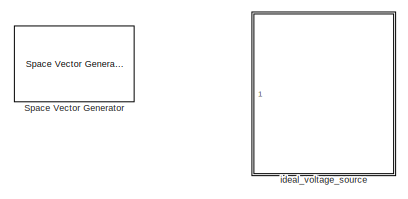
[diagram: root canvas - part 1/4, top left region]
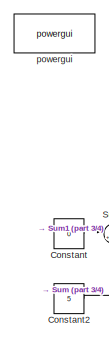
[diagram: root canvas - part 2/4, middle left region]
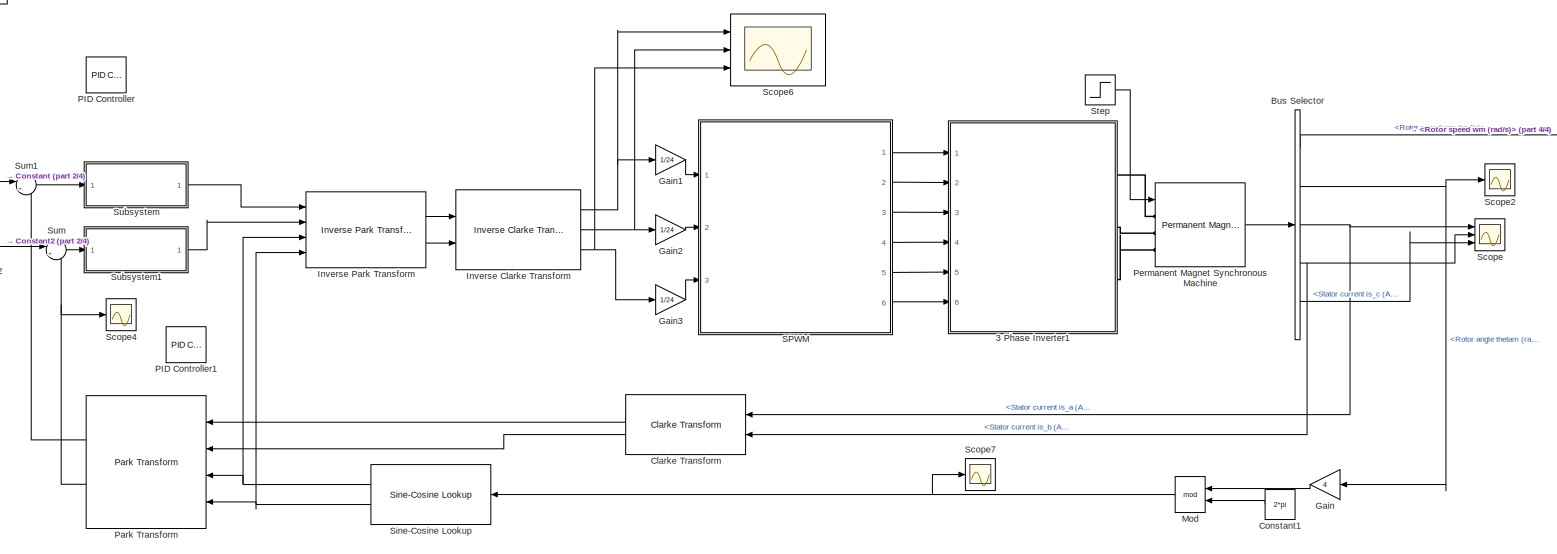
[diagram: root canvas - part 3/4, full width, bottom band]
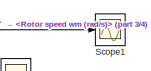
[diagram: root canvas - part 4/4, middle right region]
MODEL slx_a752b87a7616
KIND model
CONFIG AbsTol = auto
CONFIG EnableMultiTasking = off
CONFIG FixedStep = 1e-4
CONFIG MaxStep = auto
CONFIG MinStep = auto
CONFIG RelTol = 1e-3
CONFIG SampleTimeConstraint = Unconstrained
CONFIG SolverName = VariableStepAuto
CONFIG StartTime = 0.0
CONFIG StopTime = 2
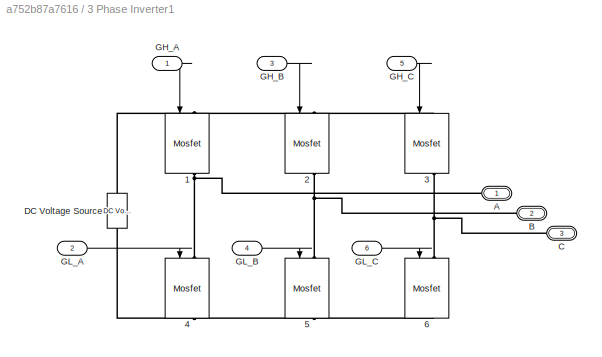
BLOCK [SubSystem] 3 Phase Inverter1
  Ports = [6, 0, 0, 0, 0, 0, 3]
  RequestExecContextInheritance = off
BLOCK [Reference] 3 Phase Inverter1/1  REF=powerlib/Power
Electronics/Mosfet
  NameLocation = left
  Ports = [1, 1, 0, 0, 0, 1, 1]
  SourceBlock = powerlib/Power\nElectronics/Mosfet
  SourceProductBaseCode = PS
  SourceType = Mosfet
BLOCK [Reference] 3 Phase Inverter1/2  REF=powerlib/Power
Electronics/Mosfet
  NameLocation = left
  Ports = [1, 1, 0, 0, 0, 1, 1]
  SourceBlock = powerlib/Power\nElectronics/Mosfet
  SourceProductBaseCode = PS
  SourceType = Mosfet
BLOCK [Reference] 3 Phase Inverter1/3  REF=powerlib/Power
Electronics/Mosfet
  NameLocation = left
  Ports = [1, 1, 0, 0, 0, 1, 1]
  SourceBlock = powerlib/Power\nElectronics/Mosfet
  SourceProductBaseCode = PS
  SourceType = Mosfet
BLOCK [Reference] 3 Phase Inverter1/4  REF=powerlib/Power
Electronics/Mosfet
  NameLocation = left
  Ports = [1, 1, 0, 0, 0, 1, 1]
  SourceBlock = powerlib/Power\nElectronics/Mosfet
  SourceProductBaseCode = PS
  SourceType = Mosfet
BLOCK [Reference] 3 Phase Inverter1/5  REF=powerlib/Power
Electronics/Mosfet
  NameLocation = left
  Ports = [1, 1, 0, 0, 0, 1, 1]
  SourceBlock = powerlib/Power\nElectronics/Mosfet
  SourceProductBaseCode = PS
  SourceType = Mosfet
BLOCK [Reference] 3 Phase Inverter1/6  REF=powerlib/Power
Electronics/Mosfet
  NameLocation = left
  Ports = [1, 1, 0, 0, 0, 1, 1]
  SourceBlock = powerlib/Power\nElectronics/Mosfet
  SourceProductBaseCode = PS
  SourceType = Mosfet
BLOCK [PMIOPort] 3 Phase Inverter1/A
  Side = Right
BLOCK [PMIOPort] 3 Phase Inverter1/B
  Port = 2
  Side = Right
BLOCK [PMIOPort] 3 Phase Inverter1/C
  Port = 3
  Side = Right
BLOCK [Reference] 3 Phase Inverter1/DC Voltage Source  REF=powerlib/Electrical
Sources/DC Voltage Source
  NameLocation = right
  Ports = [0, 0, 0, 0, 0, 1, 1]
  SourceBlock = powerlib/Electrical\nSources/DC Voltage Source
  SourceProductBaseCode = PS
  SourceType = DC Voltage Source
BLOCK [Inport] 3 Phase Inverter1/GH_A
BLOCK [Inport] 3 Phase Inverter1/GH_B
  Port = 3
BLOCK [Inport] 3 Phase Inverter1/GH_C
  Port = 5
BLOCK [Inport] 3 Phase Inverter1/GL_A
  Port = 2
BLOCK [Inport] 3 Phase Inverter1/GL_B
  Port = 4
BLOCK [Inport] 3 Phase Inverter1/GL_C
  Port = 6
BLOCK [BusSelector] Bus Selector
  OutputSignals = Rotor speed wm (rad/s),Rotor angle thetam (rad),Stator current is_a (A),Stator current is_b (A),Stator current is_c (A)
  Ports = [1, 5]
BLOCK [Reference] Clarke Transform  REF=mcbcontrolslib/Clarke Transform
  NameLocation = top
  Ports = [2, 2]
  SourceBlock = mcbcontrolslib/Clarke Transform
  SourceProductBaseCode = MT
  SourceType = Clarke Transform
BLOCK [Constant] Constant
  Value = 0
BLOCK [Constant] Constant1
  NameLocation = top
  Value = 2*pi
BLOCK [Constant] Constant2
  Value = 5
BLOCK [Gain] Gain
  Gain = 4
  NameLocation = top
BLOCK [Gain] Gain1
  Gain = 1/24
BLOCK [Gain] Gain2
  Gain = 1/24
BLOCK [Gain] Gain3
  Gain = 1/24
BLOCK [Reference] Inverse Clarke Transform  REF=mcbcontrolslib/Inverse Clarke Transform
  Ports = [2, 3]
  SourceBlock = mcbcontrolslib/Inverse Clarke Transform
  SourceProductBaseCode = MT
  SourceType = Inverse Clarke Transform
BLOCK [Reference] Inverse Park Transform  REF=mcbcontrolslib/Inverse Park Transform
  Ports = [4, 2]
  SourceBlock = mcbcontrolslib/Inverse Park Transform
  SourceProductBaseCode = MT
  SourceType = Inverse Park Transform
BLOCK [Math] Mod
  NameLocation = top
  Operator = mod
  Ports = [2, 1]
BLOCK [Reference] PID Controller  REF=pid_lib/PID Controller
  Ports = [1, 1]
  SourceBlock = pid_lib/PID Controller
  SourceProductBaseCode = SL
  SourceType = PID 1dof
BLOCK [Reference] PID Controller1  REF=pid_lib/PID Controller
  Ports = [1, 1]
  SourceBlock = pid_lib/PID Controller
  SourceProductBaseCode = SL
  SourceType = PID 1dof
BLOCK [Reference] Park Transform  REF=mcbcontrolslib/Park Transform
  NameLocation = top
  Ports = [4, 2]
  SourceBlock = mcbcontrolslib/Park Transform
  SourceProductBaseCode = MT
  SourceType = Park Transform
BLOCK [Reference] Permanent Magnet Synchronous Machine  REF=powerlib/Machines/Permanent Magnet
Synchronous Machine
  Ports = [1, 1, 0, 0, 0, 3]
  SourceBlock = powerlib/Machines/Permanent Magnet\nSynchronous Machine
  SourceProductBaseCode = PS
  SourceType = Permanent Magnet Synchronous Machine
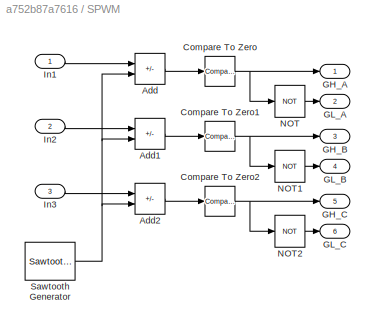
BLOCK [SubSystem] SPWM
  Ports = [3, 6]
  RequestExecContextInheritance = off
BLOCK [Sum] SPWM/Add
  IconShape = rectangular
  Inputs = +-
  Ports = [2, 1]
BLOCK [Sum] SPWM/Add1
  IconShape = rectangular
  Inputs = +-
  Ports = [2, 1]
BLOCK [Sum] SPWM/Add2
  IconShape = rectangular
  Inputs = +-
  Ports = [2, 1]
BLOCK [Reference] SPWM/Compare To Zero  REF=simulink/Logic and Bit
Operations/Compare
To Zero
  Ports = [1, 1]
  SourceBlock = simulink/Logic and Bit\nOperations/Compare\nTo Zero
  SourceProductBaseCode = SL
  SourceType = Compare To Zero
BLOCK [Reference] SPWM/Compare To Zero1  REF=simulink/Logic and Bit
Operations/Compare
To Zero
  Ports = [1, 1]
  SourceBlock = simulink/Logic and Bit\nOperations/Compare\nTo Zero
  SourceProductBaseCode = SL
  SourceType = Compare To Zero
BLOCK [Reference] SPWM/Compare To Zero2  REF=simulink/Logic and Bit
Operations/Compare
To Zero
  Ports = [1, 1]
  SourceBlock = simulink/Logic and Bit\nOperations/Compare\nTo Zero
  SourceProductBaseCode = SL
  SourceType = Compare To Zero
BLOCK [Outport] SPWM/GH_A
BLOCK [Outport] SPWM/GH_B
  Port = 3
BLOCK [Outport] SPWM/GH_C
  Port = 5
BLOCK [Outport] SPWM/GL_A
  Port = 2
BLOCK [Outport] SPWM/GL_B
  Port = 4
BLOCK [Outport] SPWM/GL_C
  Port = 6
BLOCK [Inport] SPWM/In1
BLOCK [Inport] SPWM/In2
  Port = 2
BLOCK [Inport] SPWM/In3
  Port = 3
BLOCK [Logic] SPWM/NOT
  AllPortsSameDT = off
  IconShape = distinctive
  Operator = NOT
  OutDataTypeStr = boolean
  Ports = [1, 1]
BLOCK [Logic] SPWM/NOT1
  AllPortsSameDT = off
  IconShape = distinctive
  Operator = NOT
  OutDataTypeStr = boolean
  Ports = [1, 1]
BLOCK [Logic] SPWM/NOT2
  AllPortsSameDT = off
  IconShape = distinctive
  Operator = NOT
  OutDataTypeStr = boolean
  Ports = [1, 1]
BLOCK [Reference] SPWM/Sawtooth Generator  REF=powerlib_meascontrol/Pulse & Signal
Generators/Sawtooth
Generator
  Ports = [0, 1]
  SourceBlock = powerlib_meascontrol/Pulse & Signal\nGenerators/Sawtooth\nGenerator
  SourceProductBaseCode = PS
  SourceType = Sawtooth Generator
BLOCK [Scope] Scope
  Floating = off
  NumInputPorts = 3
  Ports = [3]
  ScopeSpecificationString = Simulink.scopes.TimeScopeBlockCfg('CurrentConfiguration', extmgr.ConfigurationSet(extmgr.Configuration('Core','General UI',true),extmgr.Configuration('Core','Source UI',true),extmgr.Configuration('Sources','WiredSimulink',true),extmgr.Configuration('Visuals','Time Domain',true,'SerializedDisplays',{struct('MinYLimReal','-7.91488','MaxYLimReal','6.3525','YLabelReal','','MinYLimMag','0.00000','MaxYL...<+1472ch>
BLOCK [Scope] Scope1
  Floating = off
  NumInputPorts = 1
  Ports = [1]
  ScopeSpecificationString = Simulink.scopes.TimeScopeBlockCfg('CurrentConfiguration', extmgr.ConfigurationSet(extmgr.Configuration('Core','General UI',true),extmgr.Configuration('Core','Source UI',true),extmgr.Configuration('Sources','WiredSimulink',true,'DataLoggingVariableName','ScopeData1'),extmgr.Configuration('Visuals','Time Domain',true,'SerializedDisplays',{struct('MinYLimReal','-6.70532','MaxYLimReal','5.17815','YLab...<+1576ch>
BLOCK [Scope] Scope2
  Floating = off
  NumInputPorts = 1
  Ports = [1]
  ScopeSpecificationString = Simulink.scopes.TimeScopeBlockCfg('CurrentConfiguration', extmgr.ConfigurationSet(extmgr.Configuration('Core','General UI',true),extmgr.Configuration('Core','Source UI',true),extmgr.Configuration('Sources','WiredSimulink',true,'DataLoggingVariableName','ScopeData2'),extmgr.Configuration('Visuals','Time Domain',true,'SerializedDisplays',{struct('MinYLimReal','-0.0003','MaxYLimReal','0.00268','YLabe...<+1438ch>
BLOCK [Scope] Scope4
  Floating = off
  NumInputPorts = 1
  Ports = [1]
  ScopeSpecificationString = Simulink.scopes.TimeScopeBlockCfg('CurrentConfiguration', extmgr.ConfigurationSet(extmgr.Configuration('Core','General UI',true),extmgr.Configuration('Core','Source UI',true),extmgr.Configuration('Sources','WiredSimulink',true,'DataLoggingVariableName','ScopeData1'),extmgr.Configuration('Visuals','Time Domain',true,'SerializedDisplays',{struct('MinYLimReal','-0.68415','MaxYLimReal','6.15733','YLab...<+1450ch>
BLOCK [Scope] Scope6
  Floating = off
  NumInputPorts = 3
  Ports = [3]
  ScopeSpecificationString = Simulink.scopes.TimeScopeBlockCfg('CurrentConfiguration', extmgr.ConfigurationSet(extmgr.Configuration('Core','General UI',true),extmgr.Configuration('Core','Source UI',true),extmgr.Configuration('Sources','WiredSimulink',true,'DataLoggingVariableName','ScopeData2'),extmgr.Configuration('Visuals','Time Domain',true,'SerializedDisplays',{struct('MinYLimReal','-17.27008','MaxYLimReal','12.92554','YL...<+1468ch>
BLOCK [Scope] Scope7
  Floating = off
  NumInputPorts = 1
  Ports = [1]
  ScopeSpecificationString = Simulink.scopes.TimeScopeBlockCfg('CurrentConfiguration', extmgr.ConfigurationSet(extmgr.Configuration('Core','General UI',true),extmgr.Configuration('Core','Source UI',true),extmgr.Configuration('Sources','WiredSimulink',true,'DataLoggingVariableName','ScopeData1'),extmgr.Configuration('Visuals','Time Domain',true,'SerializedDisplays',{struct('MinYLimReal','0.08369','MaxYLimReal','2.70168','YLabe...<+1379ch>
BLOCK [Reference] Sine-Cosine Lookup  REF=mcbcontrolslib/Sine-Cosine Lookup
  NameLocation = top
  Ports = [1, 2]
  SourceBlock = mcbcontrolslib/Sine-Cosine Lookup
  SourceProductBaseCode = MT
  SourceType = Sine-Cosine Lookup
BLOCK [Reference] Space Vector Generator  REF=mcbcontrolslib/Space Vector Generator
  Ports = [2, 3]
  SourceBlock = mcbcontrolslib/Space Vector Generator
  SourceProductBaseCode = MT
  SourceType = Space Vector Generator
BLOCK [Step] Step
  After = 0
  SampleTime = 0
  Time = 0
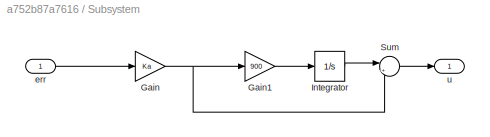
BLOCK [SubSystem] Subsystem
  Ports = [1, 1]
  RequestExecContextInheritance = off
BLOCK [Gain] Subsystem/Gain
  Gain = Ka
BLOCK [Gain] Subsystem/Gain1
  Gain = 900
BLOCK [Integrator] Subsystem/Integrator
  Ports = [1, 1]
BLOCK [Sum] Subsystem/Sum
  Inputs = |++
  Ports = [2, 1]
BLOCK [Inport] Subsystem/err
BLOCK [Outport] Subsystem/u
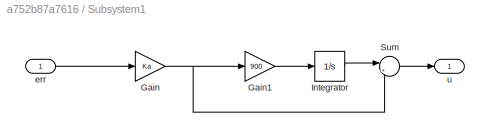
BLOCK [SubSystem] Subsystem1
  Ports = [1, 1]
  RequestExecContextInheritance = off
BLOCK [Gain] Subsystem1/Gain
  Gain = Ka
BLOCK [Gain] Subsystem1/Gain1
  Gain = 900
BLOCK [Integrator] Subsystem1/Integrator
  Ports = [1, 1]
BLOCK [Sum] Subsystem1/Sum
  Inputs = |++
  Ports = [2, 1]
BLOCK [Inport] Subsystem1/err
BLOCK [Outport] Subsystem1/u
BLOCK [Sum] Sum
  Inputs = |+-
  Ports = [2, 1]
BLOCK [Sum] Sum1
  Inputs = |+-
  Ports = [2, 1]
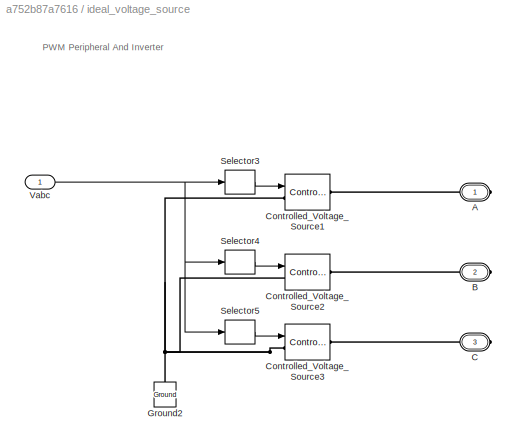
BLOCK [SubSystem] ideal_voltage_source
  Ports = [1, 0, 0, 0, 0, 0, 3]
  RequestExecContextInheritance = off
  VariantControl = variantPwm == enumPwm.behavior
BLOCK [PMIOPort] ideal_voltage_source/A
  Side = Right
  Tag = PMCPort
BLOCK [PMIOPort] ideal_voltage_source/B
  Port = 2
  Side = Right
  Tag = PMCPort
BLOCK [PMIOPort] ideal_voltage_source/C
  Port = 3
  Side = Right
  Tag = PMCPort
BLOCK [Reference] ideal_voltage_source/Controlled_Voltage_Source1  REF=powerlib/Electrical
Sources/Controlled Voltage Source
  Ports = [1, 0, 0, 0, 0, 1, 1]
  SourceBlock = powerlib/Electrical\nSources/Controlled Voltage Source
  SourceProductBaseCode = PS
  SourceType = Controlled Voltage Source
BLOCK [Reference] ideal_voltage_source/Controlled_Voltage_Source2  REF=powerlib/Electrical
Sources/Controlled Voltage Source
  Ports = [1, 0, 0, 0, 0, 1, 1]
  SourceBlock = powerlib/Electrical\nSources/Controlled Voltage Source
  SourceProductBaseCode = PS
  SourceType = Controlled Voltage Source
BLOCK [Reference] ideal_voltage_source/Controlled_Voltage_Source3  REF=powerlib/Electrical
Sources/Controlled Voltage Source
  Ports = [1, 0, 0, 0, 0, 1, 1]
  SourceBlock = powerlib/Electrical\nSources/Controlled Voltage Source
  SourceProductBaseCode = PS
  SourceType = Controlled Voltage Source
BLOCK [Reference] ideal_voltage_source/Ground2  REF=powerlib/Elements/Ground
  NameLocation = right
  Ports = [0, 0, 0, 0, 0, 1]
  SourceBlock = powerlib/Elements/Ground
  SourceProductBaseCode = PS
  SourceType = Ground
BLOCK [Selector] ideal_voltage_source/Selector3
  IndexOptions = Index vector (dialog)
  Indices = [1]
  InputPortWidth = 3
  OutputSizes = 1
  Ports = [1, 1]
BLOCK [Selector] ideal_voltage_source/Selector4
  IndexOptions = Index vector (dialog)
  Indices = 2
  InputPortWidth = 3
  OutputSizes = 1
  Ports = [1, 1]
BLOCK [Selector] ideal_voltage_source/Selector5
  IndexOptions = Index vector (dialog)
  Indices = 3
  InputPortWidth = 3
  OutputSizes = 1
  Ports = [1, 1]
BLOCK [Inport] ideal_voltage_source/Vabc
BLOCK [Reference] powergui  REF=powerlib/powergui
  Ports = []
  Priority = 1
  SourceBlock = powerlib/powergui
  SourceProductBaseCode = PS
  SourceType = PSB option menu block
ANNOTATION ideal_voltage_source: PWM Peripheral And Inverter
LINE 3 Phase Inverter1/GH_A:1 -> 3 Phase Inverter1/1:1
LINE 3 Phase Inverter1/GH_B:1 -> 3 Phase Inverter1/2:1
LINE 3 Phase Inverter1/GH_C:1 -> 3 Phase Inverter1/3:1
LINE 3 Phase Inverter1/GL_A:1 -> 3 Phase Inverter1/4:1
LINE 3 Phase Inverter1/GL_B:1 -> 3 Phase Inverter1/5:1
LINE 3 Phase Inverter1/GL_C:1 -> 3 Phase Inverter1/6:1
LINE Bus Selector:1 -> Scope1:1
NET Bus Selector:2 -> Gain:1, Scope2:1
NET Bus Selector:3 -> Clarke Transform:1, Scope:1
NET Bus Selector:4 -> Clarke Transform:2, Scope:2
LINE Bus Selector:5 -> Scope:3
LINE Clarke Transform:1 -> Park Transform:1
LINE Clarke Transform:2 -> Park Transform:2
LINE Constant1:1 -> Mod:2
LINE Constant2:1 -> Sum:1
LINE Constant:1 -> Sum1:1
LINE Gain1:1 -> SPWM:1
LINE Gain2:1 -> SPWM:2
LINE Gain3:1 -> SPWM:3
LINE Gain:1 -> Mod:1
NET Inverse Clarke Transform:1 -> Gain1:1, Scope6:1
NET Inverse Clarke Transform:2 -> Gain2:1, Scope6:2
NET Inverse Clarke Transform:3 -> Gain3:1, Scope6:3
LINE Inverse Park Transform:1 -> Inverse Clarke Transform:1
LINE Inverse Park Transform:2 -> Inverse Clarke Transform:2
NET Mod:1 -> Scope7:1, Sine-Cosine Lookup:1
LINE Park Transform:1 -> Sum1:2
NET Park Transform:2 -> Scope4:1, Sum:2
LINE Permanent Magnet Synchronous Machine:1 -> Bus Selector:1
LINE SPWM/Add1:1 -> SPWM/Compare To Zero1:1
LINE SPWM/Add2:1 -> SPWM/Compare To Zero2:1
LINE SPWM/Add:1 -> SPWM/Compare To Zero:1
NET SPWM/Compare To Zero1:1 -> SPWM/GH_B:1, SPWM/NOT1:1
NET SPWM/Compare To Zero2:1 -> SPWM/GH_C:1, SPWM/NOT2:1
NET SPWM/Compare To Zero:1 -> SPWM/GH_A:1, SPWM/NOT:1
LINE SPWM/In1:1 -> SPWM/Add:1
LINE SPWM/In2:1 -> SPWM/Add1:1
LINE SPWM/In3:1 -> SPWM/Add2:1
LINE SPWM/NOT1:1 -> SPWM/GL_B:1
LINE SPWM/NOT2:1 -> SPWM/GL_C:1
LINE SPWM/NOT:1 -> SPWM/GL_A:1
NET SPWM/Sawtooth Generator:1 -> SPWM/Add1:2, SPWM/Add2:2, SPWM/Add:2
LINE SPWM:1 -> 3 Phase Inverter1:1
LINE SPWM:2 -> 3 Phase Inverter1:2
LINE SPWM:3 -> 3 Phase Inverter1:3
LINE SPWM:4 -> 3 Phase Inverter1:4
LINE SPWM:5 -> 3 Phase Inverter1:5
LINE SPWM:6 -> 3 Phase Inverter1:6
NET Sine-Cosine Lookup:1 -> Inverse Park Transform:3, Park Transform:3
NET Sine-Cosine Lookup:2 -> Inverse Park Transform:4, Park Transform:4
LINE Step:1 -> Permanent Magnet Synchronous Machine:1
LINE Subsystem/Gain1:1 -> Subsystem/Integrator:1
NET Subsystem/Gain:1 -> Subsystem/Gain1:1, Subsystem/Sum:2
LINE Subsystem/Integrator:1 -> Subsystem/Sum:1
LINE Subsystem/Sum:1 -> Subsystem/u:1
LINE Subsystem/err:1 -> Subsystem/Gain:1
LINE Subsystem1/Gain1:1 -> Subsystem1/Integrator:1
NET Subsystem1/Gain:1 -> Subsystem1/Gain1:1, Subsystem1/Sum:2
LINE Subsystem1/Integrator:1 -> Subsystem1/Sum:1
LINE Subsystem1/Sum:1 -> Subsystem1/u:1
LINE Subsystem1/err:1 -> Subsystem1/Gain:1
LINE Subsystem1:1 -> Inverse Park Transform:2
LINE Subsystem:1 -> Inverse Park Transform:1
LINE Sum1:1 -> Subsystem:1
LINE Sum:1 -> Subsystem1:1
LINE ideal_voltage_source/Selector3:1 -> ideal_voltage_source/Controlled_Voltage_Source1:1
LINE ideal_voltage_source/Selector4:1 -> ideal_voltage_source/Controlled_Voltage_Source2:1
LINE ideal_voltage_source/Selector5:1 -> ideal_voltage_source/Controlled_Voltage_Source3:1
NET ideal_voltage_source/Vabc:1 -> ideal_voltage_source/Selector3:1, ideal_voltage_source/Selector4:1, ideal_voltage_source/Selector5:1
PNET net1: 3 Phase Inverter1/1:LConn1 -- 3 Phase Inverter1/2:LConn1 -- 3 Phase Inverter1/3:LConn1 -- 3 Phase Inverter1/DC Voltage Source:RConn1
PNET net2: 3 Phase Inverter1/1:RConn1 -- 3 Phase Inverter1/4:LConn1 -- 3 Phase Inverter1/A:RConn1
PNET net3: 3 Phase Inverter1/2:RConn1 -- 3 Phase Inverter1/5:LConn1 -- 3 Phase Inverter1/B:RConn1
PNET net4: 3 Phase Inverter1/3:RConn1 -- 3 Phase Inverter1/6:LConn1 -- 3 Phase Inverter1/C:RConn1
PNET net5: 3 Phase Inverter1/4:RConn1 -- 3 Phase Inverter1/5:RConn1 -- 3 Phase Inverter1/6:RConn1 -- 3 Phase Inverter1/DC Voltage Source:LConn1
PLINE 3 Phase Inverter1:RConn1 -- Permanent Magnet Synchronous Machine:LConn1
PLINE 3 Phase Inverter1:RConn2 -- Permanent Magnet Synchronous Machine:LConn2
PLINE 3 Phase Inverter1:RConn3 -- Permanent Magnet Synchronous Machine:LConn3
PLINE ideal_voltage_source/A:RConn1 -- ideal_voltage_source/Controlled_Voltage_Source1:RConn1
PLINE ideal_voltage_source/B:RConn1 -- ideal_voltage_source/Controlled_Voltage_Source2:RConn1
PLINE ideal_voltage_source/C:RConn1 -- ideal_voltage_source/Controlled_Voltage_Source3:RConn1
PNET net6: ideal_voltage_source/Controlled_Voltage_Source1:LConn1 -- ideal_voltage_source/Controlled_Voltage_Source2:LConn1 -- ideal_voltage_source/Controlled_Voltage_Source3:LConn1 -- ideal_voltage_source/Ground2:LConn1
note: NET lines group one-source signal fan-out (src -> all destinations, sorted); 1:1 wires keep LINE; PNET lines group multi-terminal physical nets as a canonical sorted terminal list (undirected conserving connections); 2-terminal nets keep the pairwise PLINE form
